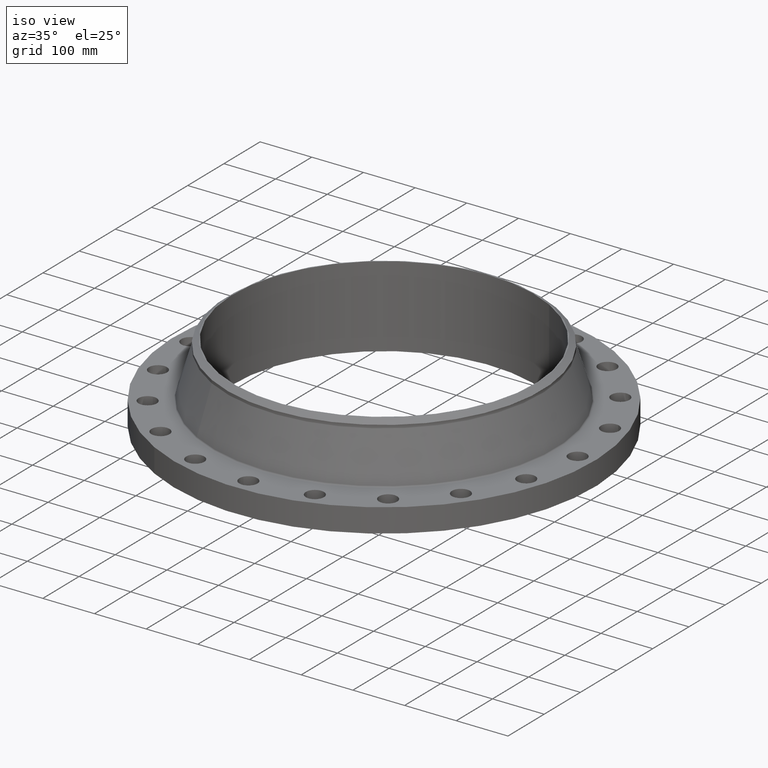
[diagram: clean part render]
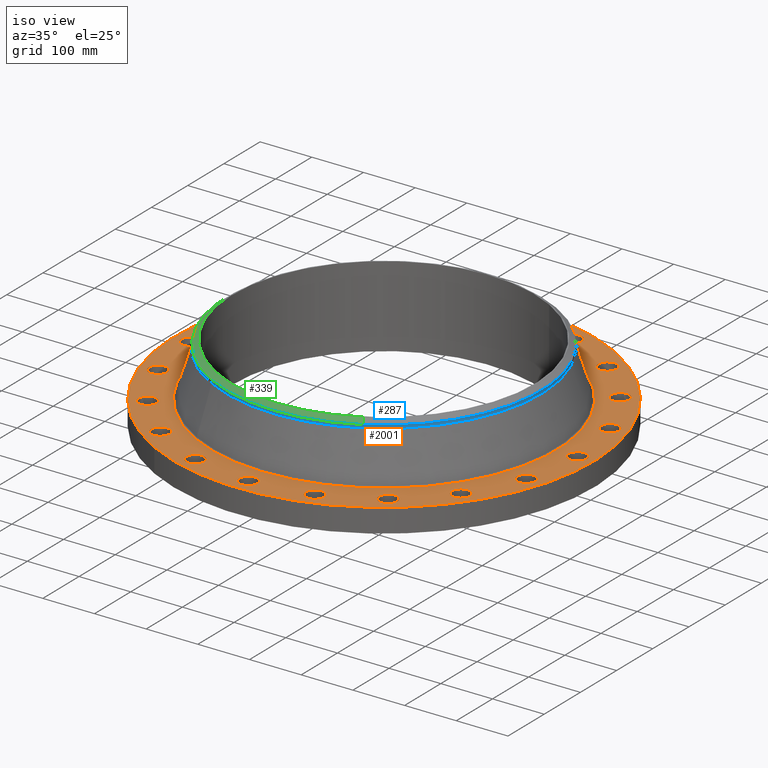
[diagram: same view with three faces highlighted in distinct colors, each labeled with its STEP entity id]
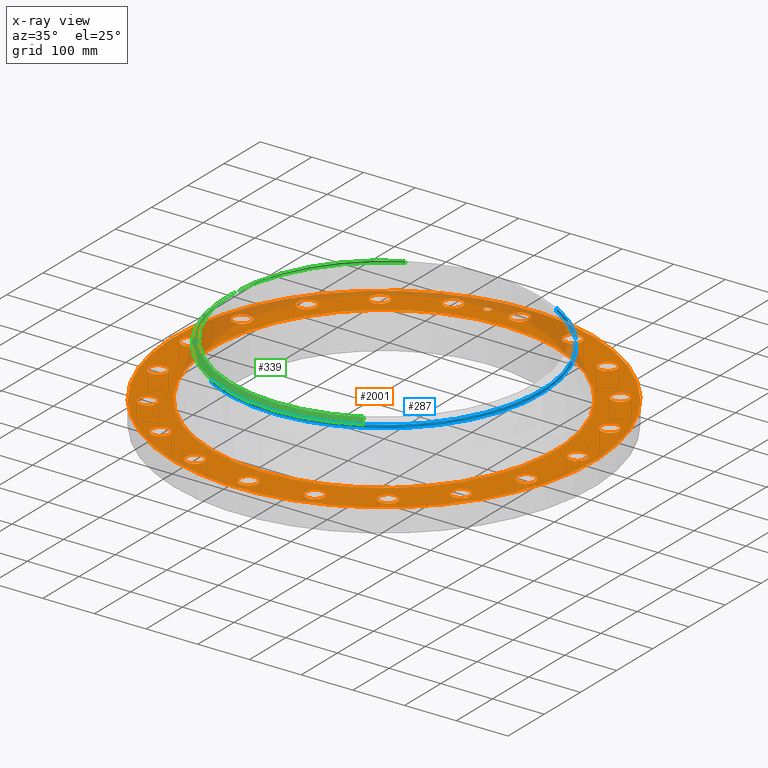
[diagram: x-ray of the same camera — body ghosted, the three highlighted faces saturated]
A machine part, iso view with three faces highlighted in distinct colors.
The next image is the same camera in x-ray (body ghosted, the three faces saturated) — at least one of them is partly hidden behind the body in this view.
Their STEP definitions:

[orange] entity #2001 — the highlighted planar face has unit normal (0, 0, -1).
#65=AXIS2_PLACEMENT_3D('Circle Axis2P3D',#63,#64,$) ;
#82=AXIS2_PLACEMENT_3D('Circle Axis2P3D',#80,#81,$) ;
#115=AXIS2_PLACEMENT_3D('Circle Axis2P3D',#113,#114,$) ;
#139=AXIS2_PLACEMENT_3D('Circle Axis2P3D',#137,#138,$) ;
#156=AXIS2_PLACEMENT_3D('Circle Axis2P3D',#154,#155,$) ;
#191=AXIS2_PLACEMENT_3D('Circle Axis2P3D',#189,#190,$) ;
#862=AXIS2_PLACEMENT_3D('Circle Axis2P3D',#860,#861,$) ;
#874=AXIS2_PLACEMENT_3D('Circle Axis2P3D',#872,#873,$) ;
#905=AXIS2_PLACEMENT_3D('Circle Axis2P3D',#903,#904,$) ;
#917=AXIS2_PLACEMENT_3D('Circle Axis2P3D',#915,#916,$) ;
#948=AXIS2_PLACEMENT_3D('Circle Axis2P3D',#946,#947,$) ;
#960=AXIS2_PLACEMENT_3D('Circle Axis2P3D',#958,#959,$) ;
#991=AXIS2_PLACEMENT_3D('Circle Axis2P3D',#989,#990,$) ;
#1003=AXIS2_PLACEMENT_3D('Circle Axis2P3D',#1001,#1002,$) ;
#1034=AXIS2_PLACEMENT_3D('Circle Axis2P3D',#1032,#1033,$) ;
#1046=AXIS2_PLACEMENT_3D('Circle Axis2P3D',#1044,#1045,$) ;
#1077=AXIS2_PLACEMENT_3D('Circle Axis2P3D',#1075,#1076,$) ;
#1089=AXIS2_PLACEMENT_3D('Circle Axis2P3D',#1087,#1088,$) ;
#1120=AXIS2_PLACEMENT_3D('Circle Axis2P3D',#1118,#1119,$) ;
#1132=AXIS2_PLACEMENT_3D('Circle Axis2P3D',#1130,#1131,$) ;
#1163=AXIS2_PLACEMENT_3D('Circle Axis2P3D',#1161,#1162,$) ;
#1175=AXIS2_PLACEMENT_3D('Circle Axis2P3D',#1173,#1174,$) ;
#1206=AXIS2_PLACEMENT_3D('Circle Axis2P3D',#1204,#1205,$) ;
#1218=AXIS2_PLACEMENT_3D('Circle Axis2P3D',#1216,#1217,$) ;
#1249=AXIS2_PLACEMENT_3D('Circle Axis2P3D',#1247,#1248,$) ;
#1261=AXIS2_PLACEMENT_3D('Circle Axis2P3D',#1259,#1260,$) ;
#1292=AXIS2_PLACEMENT_3D('Circle Axis2P3D',#1290,#1291,$) ;
#1304=AXIS2_PLACEMENT_3D('Circle Axis2P3D',#1302,#1303,$) ;
#1335=AXIS2_PLACEMENT_3D('Circle Axis2P3D',#1333,#1334,$) ;
#1347=AXIS2_PLACEMENT_3D('Circle Axis2P3D',#1345,#1346,$) ;
#1378=AXIS2_PLACEMENT_3D('Circle Axis2P3D',#1376,#1377,$) ;
#1390=AXIS2_PLACEMENT_3D('Circle Axis2P3D',#1388,#1389,$) ;
#1421=AXIS2_PLACEMENT_3D('Circle Axis2P3D',#1419,#1420,$) ;
#1433=AXIS2_PLACEMENT_3D('Circle Axis2P3D',#1431,#1432,$) ;
#1464=AXIS2_PLACEMENT_3D('Circle Axis2P3D',#1462,#1463,$) ;
#1476=AXIS2_PLACEMENT_3D('Circle Axis2P3D',#1474,#1475,$) ;
#1507=AXIS2_PLACEMENT_3D('Circle Axis2P3D',#1505,#1506,$) ;
#1519=AXIS2_PLACEMENT_3D('Circle Axis2P3D',#1517,#1518,$) ;
#1550=AXIS2_PLACEMENT_3D('Circle Axis2P3D',#1548,#1549,$) ;
#1562=AXIS2_PLACEMENT_3D('Circle Axis2P3D',#1560,#1561,$) ;
#1593=AXIS2_PLACEMENT_3D('Circle Axis2P3D',#1591,#1592,$) ;
#1605=AXIS2_PLACEMENT_3D('Circle Axis2P3D',#1603,#1604,$) ;
#1636=AXIS2_PLACEMENT_3D('Circle Axis2P3D',#1634,#1635,$) ;
#1648=AXIS2_PLACEMENT_3D('Circle Axis2P3D',#1646,#1647,$) ;
#1893=AXIS2_PLACEMENT_3D('Plane Axis2P3D',#1890,#1891,#1892) ;
#1985=AXIS2_PLACEMENT_3D('Circle Axis2P3D',#1983,#1984,$) ;
#1994=AXIS2_PLACEMENT_3D('Circle Axis2P3D',#1992,#1993,$) ;
#46=CARTESIAN_POINT('Vertex',(-0.605531967707,15.0808036217,1.81000000001)) ;
#60=CARTESIAN_POINT('Vertex',(0.605531967707,14.4191963784,1.81000000001)) ;
#63=CARTESIAN_POINT('Axis2P3D Location',(0.,14.7500000001,1.81000000001)) ;
#80=CARTESIAN_POINT('Axis2P3D Location',(0.,14.7500000001,1.81000000001)) ;
#110=CARTESIAN_POINT('Vertex',(-7.6708086177,-14.0413209903,1.81000000001)) ;
#113=CARTESIAN_POINT('Axis2P3D Location',(0.,0.,1.81000000001)) ;
#117=CARTESIAN_POINT('Vertex',(7.6708086177,14.0413209903,1.81000000001)) ;
#137=CARTESIAN_POINT('Axis2P3D Location',(0.,0.,1.81000000001)) ;
#154=CARTESIAN_POINT('Axis2P3D Location',(0.,0.,1.81000000001)) ;
#158=CARTESIAN_POINT('Vertex',(6.30423081195,11.5398170961,1.81000000001)) ;
#160=CARTESIAN_POINT('Vertex',(-6.30423081195,-11.5398170961,1.81000000001)) ;
#189=CARTESIAN_POINT('Axis2P3D Location',(0.,0.,1.81000000001)) ;
#850=CARTESIAN_POINT('Vertex',(-4.08432948422,-14.529816224,1.81000000001)) ;
#857=CARTESIAN_POINT('Vertex',(-5.03167184987,-13.5263510068,1.81000000001)) ;
#860=CARTESIAN_POINT('Axis2P3D Location',(-4.55800066705,-14.0280836154,1.81000000001)) ;
#872=CARTESIAN_POINT('Axis2P3D Location',(-4.55800066705,-14.0280836154,1.81000000001)) ;
#893=CARTESIAN_POINT('Vertex',(8.37438830904,12.5565491792,1.81000000001)) ;
#900=CARTESIAN_POINT('Vertex',(8.96527663366,11.309452155,1.81000000001)) ;
#903=CARTESIAN_POINT('Axis2P3D Location',(8.66983247135,11.9330006671,1.81000000001)) ;
#915=CARTESIAN_POINT('Axis2P3D Location',(8.66983247135,11.9330006671,1.81000000001)) ;
#936=CARTESIAN_POINT('Vertex',(-8.37438830904,-12.5565491792,1.81000000001)) ;
#943=CARTESIAN_POINT('Vertex',(-8.96527663366,-11.309452155,1.81000000001)) ;
#946=CARTESIAN_POINT('Axis2P3D Location',(-8.66983247135,-11.9330006671,1.81000000001)) ;
#958=CARTESIAN_POINT('Axis2P3D Location',(-8.66983247135,-11.9330006671,1.81000000001)) ;
#979=CARTESIAN_POINT('Vertex',(11.8447036584,9.35415961406,1.81000000001)) ;
#986=CARTESIAN_POINT('Vertex',(12.0212976758,7.98550532863,1.81000000001)) ;
#989=CARTESIAN_POINT('Axis2P3D Location',(11.9330006671,8.66983247135,1.81000000001)) ;
#1001=CARTESIAN_POINT('Axis2P3D Location',(11.9330006671,8.66983247135,1.81000000001)) ;
#1022=CARTESIAN_POINT('Vertex',(-11.8447036584,-9.35415961406,1.81000000001)) ;
#1029=CARTESIAN_POINT('Vertex',(-12.0212976758,-7.98550532863,1.81000000001)) ;
#1032=CARTESIAN_POINT('Axis2P3D Location',(-11.9330006671,-8.66983247135,1.81000000001)) ;
#1044=CARTESIAN_POINT('Axis2P3D Location',(-11.9330006671,-8.66983247135,1.81000000001)) ;
#1065=CARTESIAN_POINT('Vertex',(14.1555768867,5.23611973165,1.81000000001)) ;
#1072=CARTESIAN_POINT('Vertex',(13.9005903441,3.87988160245,1.81000000001)) ;
#1075=CARTESIAN_POINT('Axis2P3D Location',(14.0280836154,4.55800066705,1.81000000001)) ;
#1087=CARTESIAN_POINT('Axis2P3D Location',(14.0280836154,4.55800066705,1.81000000001)) ;
#1108=CARTESIAN_POINT('Vertex',(-14.1555768867,-5.23611973165,1.81000000001)) ;
#1115=CARTESIAN_POINT('Vertex',(-13.9005903441,-3.87988160245,1.81000000001)) ;
#1118=CARTESIAN_POINT('Axis2P3D Location',(-14.0280836154,-4.55800066705,1.81000000001)) ;
#1130=CARTESIAN_POINT('Axis2P3D Location',(-14.0280836154,-4.55800066705,1.81000000001)) ;
#1151=CARTESIAN_POINT('Vertex',(15.0808036217,0.605531967707,1.81000000001)) ;
#1158=CARTESIAN_POINT('Vertex',(14.4191963784,-0.605531967707,1.81000000001)) ;
#1161=CARTESIAN_POINT('Axis2P3D Location',(14.7500000001,4.17833493703E-015,1.81000000001)) ;
#1173=CARTESIAN_POINT('Axis2P3D Location',(14.7500000001,4.17833493703E-015,1.81000000001)) ;
#1194=CARTESIAN_POINT('Vertex',(-15.0808036217,-0.605531967707,1.81000000001)) ;
#1201=CARTESIAN_POINT('Vertex',(-14.4191963784,0.605531967707,1.81000000001)) ;
#1204=CARTESIAN_POINT('Axis2P3D Location',(-14.7500000001,-1.58101627338E-014,1.81000000001)) ;
#1216=CARTESIAN_POINT('Axis2P3D Location',(-14.7500000001,-1.58101627338E-014,1.81000000001)) ;
#1237=CARTESIAN_POINT('Vertex',(14.529816224,-4.08432948422,1.81000000001)) ;
#1244=CARTESIAN_POINT('Vertex',(13.5263510068,-5.03167184987,1.81000000001)) ;
#1247=CARTESIAN_POINT('Axis2P3D Location',(14.0280836154,-4.55800066705,1.81000000001)) ;
#1259=CARTESIAN_POINT('Axis2P3D Location',(14.0280836154,-4.55800066705,1.81000000001)) ;
#1280=CARTESIAN_POINT('Vertex',(-14.529816224,4.08432948422,1.81000000001)) ;
#1287=CARTESIAN_POINT('Vertex',(-13.5263510068,5.03167184987,1.81000000001)) ;
#1290=CARTESIAN_POINT('Axis2P3D Location',(-14.0280836154,4.55800066705,1.81000000001)) ;
#1302=CARTESIAN_POINT('Axis2P3D Location',(-14.0280836154,4.55800066705,1.81000000001)) ;
#1323=CARTESIAN_POINT('Vertex',(12.5565491792,-8.37438830904,1.81000000001)) ;
#1330=CARTESIAN_POINT('Vertex',(11.309452155,-8.96527663366,1.81000000001)) ;
#1333=CARTESIAN_POINT('Axis2P3D Location',(11.9330006671,-8.66983247135,1.81000000001)) ;
#1345=CARTESIAN_POINT('Axis2P3D Location',(11.9330006671,-8.66983247135,1.81000000001)) ;
#1366=CARTESIAN_POINT('Vertex',(-12.5565491792,8.37438830904,1.81000000001)) ;
#1373=CARTESIAN_POINT('Vertex',(-11.309452155,8.96527663366,1.81000000001)) ;
#1376=CARTESIAN_POINT('Axis2P3D Location',(-11.9330006671,8.66983247135,1.81000000001)) ;
#1388=CARTESIAN_POINT('Axis2P3D Location',(-11.9330006671,8.66983247135,1.81000000001)) ;
#1409=CARTESIAN_POINT('Vertex',(9.35415961406,-11.8447036584,1.81000000001)) ;
#1416=CARTESIAN_POINT('Vertex',(7.98550532863,-12.0212976758,1.81000000001)) ;
#1419=CARTESIAN_POINT('Axis2P3D Location',(8.66983247135,-11.9330006671,1.81000000001)) ;
#1431=CARTESIAN_POINT('Axis2P3D Location',(8.66983247135,-11.9330006671,1.81000000001)) ;
#1452=CARTESIAN_POINT('Vertex',(-9.35415961406,11.8447036584,1.81000000001)) ;
#1459=CARTESIAN_POINT('Vertex',(-7.98550532863,12.0212976758,1.81000000001)) ;
#1462=CARTESIAN_POINT('Axis2P3D Location',(-8.66983247135,11.9330006671,1.81000000001)) ;
#1474=CARTESIAN_POINT('Axis2P3D Location',(-8.66983247135,11.9330006671,1.81000000001)) ;
#1495=CARTESIAN_POINT('Vertex',(5.23611973165,-14.1555768867,1.81000000001)) ;
#1502=CARTESIAN_POINT('Vertex',(3.87988160245,-13.9005903441,1.81000000001)) ;
#1505=CARTESIAN_POINT('Axis2P3D Location',(4.55800066705,-14.0280836154,1.81000000001)) ;
#1517=CARTESIAN_POINT('Axis2P3D Location',(4.55800066705,-14.0280836154,1.81000000001)) ;
#1538=CARTESIAN_POINT('Vertex',(-5.23611973165,14.1555768867,1.81000000001)) ;
#1545=CARTESIAN_POINT('Vertex',(-3.87988160245,13.9005903441,1.81000000001)) ;
#1548=CARTESIAN_POINT('Axis2P3D Location',(-4.55800066705,14.0280836154,1.81000000001)) ;
#1560=CARTESIAN_POINT('Axis2P3D Location',(-4.55800066705,14.0280836154,1.81000000001)) ;
#1581=CARTESIAN_POINT('Vertex',(0.605531967707,-15.0808036217,1.81000000001)) ;
#1588=CARTESIAN_POINT('Vertex',(-0.605531967707,-14.4191963784,1.81000000001)) ;
#1591=CARTESIAN_POINT('Axis2P3D Location',(8.35666987406E-015,-14.7500000001,1.81000000001)) ;
#1603=CARTESIAN_POINT('Axis2P3D Location',(8.35666987406E-015,-14.7500000001,1.81000000001)) ;
#1624=CARTESIAN_POINT('Vertex',(4.08432948422,14.529816224,1.81000000001)) ;
#1631=CARTESIAN_POINT('Vertex',(5.03167184987,13.5263510068,1.81000000001)) ;
#1634=CARTESIAN_POINT('Axis2P3D Location',(4.55800066705,14.0280836154,1.81000000001)) ;
#1646=CARTESIAN_POINT('Axis2P3D Location',(4.55800066705,14.0280836154,1.81000000001)) ;
#1890=CARTESIAN_POINT('Axis2P3D Location',(0.,16.0000000001,1.81000000001)) ;
#1983=CARTESIAN_POINT('Axis2P3D Location',(-2.30740835935,14.5684030238,1.81000000001)) ;
#1987=CARTESIAN_POINT('Vertex',(-2.06295549505,14.6071205539,1.81000000001)) ;
#1989=CARTESIAN_POINT('Vertex',(-2.55186122365,14.5296854937,1.81000000001)) ;
#1992=CARTESIAN_POINT('Axis2P3D Location',(-2.30740835935,14.5684030238,1.81000000001)) ;
#64=DIRECTION('Axis2P3D Direction',(0.,-0.,-0.0393700787402)) ;
#81=DIRECTION('Axis2P3D Direction',(0.,-0.,-0.0393700787402)) ;
#114=DIRECTION('Axis2P3D Direction',(0.,0.,-0.0393700787402)) ;
#138=DIRECTION('Axis2P3D Direction',(0.,0.,-0.0393700787402)) ;
#155=DIRECTION('Axis2P3D Direction',(0.,0.,-0.0393700787402)) ;
#190=DIRECTION('Axis2P3D Direction',(0.,0.,-0.0393700787402)) ;
#861=DIRECTION('Axis2P3D Direction',(0.,0.,-0.0393700787402)) ;
#873=DIRECTION('Axis2P3D Direction',(0.,0.,-0.0393700787402)) ;
#904=DIRECTION('Axis2P3D Direction',(0.,-0.,-0.0393700787402)) ;
#916=DIRECTION('Axis2P3D Direction',(0.,-0.,-0.0393700787402)) ;
#947=DIRECTION('Axis2P3D Direction',(0.,0.,-0.0393700787402)) ;
#959=DIRECTION('Axis2P3D Direction',(0.,0.,-0.0393700787402)) ;
#990=DIRECTION('Axis2P3D Direction',(0.,-0.,-0.0393700787402)) ;
#1002=DIRECTION('Axis2P3D Direction',(0.,-0.,-0.0393700787402)) ;
#1033=DIRECTION('Axis2P3D Direction',(0.,0.,-0.0393700787402)) ;
#1045=DIRECTION('Axis2P3D Direction',(0.,0.,-0.0393700787402)) ;
#1076=DIRECTION('Axis2P3D Direction',(0.,-0.,-0.0393700787402)) ;
#1088=DIRECTION('Axis2P3D Direction',(0.,-0.,-0.0393700787402)) ;
#1119=DIRECTION('Axis2P3D Direction',(0.,0.,-0.0393700787402)) ;
#1131=DIRECTION('Axis2P3D Direction',(0.,0.,-0.0393700787402)) ;
#1162=DIRECTION('Axis2P3D Direction',(0.,-0.,-0.0393700787402)) ;
#1174=DIRECTION('Axis2P3D Direction',(0.,-0.,-0.0393700787402)) ;
#1205=DIRECTION('Axis2P3D Direction',(0.,0.,-0.0393700787402)) ;
#1217=DIRECTION('Axis2P3D Direction',(0.,0.,-0.0393700787402)) ;
#1248=DIRECTION('Axis2P3D Direction',(-0.,0.,-0.0393700787402)) ;
#1260=DIRECTION('Axis2P3D Direction',(-0.,0.,-0.0393700787402)) ;
#1291=DIRECTION('Axis2P3D Direction',(0.,0.,-0.0393700787402)) ;
#1303=DIRECTION('Axis2P3D Direction',(0.,0.,-0.0393700787402)) ;
#1334=DIRECTION('Axis2P3D Direction',(-0.,0.,-0.0393700787402)) ;
#1346=DIRECTION('Axis2P3D Direction',(-0.,0.,-0.0393700787402)) ;
#1377=DIRECTION('Axis2P3D Direction',(0.,0.,-0.0393700787402)) ;
#1389=DIRECTION('Axis2P3D Direction',(0.,0.,-0.0393700787402)) ;
#1420=DIRECTION('Axis2P3D Direction',(-0.,0.,-0.0393700787402)) ;
#1432=DIRECTION('Axis2P3D Direction',(-0.,0.,-0.0393700787402)) ;
#1463=DIRECTION('Axis2P3D Direction',(0.,0.,-0.0393700787402)) ;
#1475=DIRECTION('Axis2P3D Direction',(0.,0.,-0.0393700787402)) ;
#1506=DIRECTION('Axis2P3D Direction',(-0.,0.,-0.0393700787402)) ;
#1518=DIRECTION('Axis2P3D Direction',(-0.,0.,-0.0393700787402)) ;
#1549=DIRECTION('Axis2P3D Direction',(0.,0.,-0.0393700787402)) ;
#1561=DIRECTION('Axis2P3D Direction',(0.,0.,-0.0393700787402)) ;
#1592=DIRECTION('Axis2P3D Direction',(-0.,0.,-0.0393700787402)) ;
#1604=DIRECTION('Axis2P3D Direction',(-0.,0.,-0.0393700787402)) ;
#1635=DIRECTION('Axis2P3D Direction',(0.,-0.,-0.0393700787402)) ;
#1647=DIRECTION('Axis2P3D Direction',(0.,-0.,-0.0393700787402)) ;
#1891=DIRECTION('Axis2P3D Direction',(0.,0.,-0.0393700787402)) ;
#1892=DIRECTION('Axis2P3D XDirection',(0.0393700787402,0.,0.)) ;
#1984=DIRECTION('Axis2P3D Direction',(0.,0.,-0.0393700787402)) ;
#1993=DIRECTION('Axis2P3D Direction',(0.,0.,-0.0393700787402)) ;
#1896=ORIENTED_EDGE('',*,*,#141,.F.) ;
#1897=ORIENTED_EDGE('',*,*,#119,.F.) ;
#1900=ORIENTED_EDGE('',*,*,#67,.T.) ;
#1901=ORIENTED_EDGE('',*,*,#84,.T.) ;
#1904=ORIENTED_EDGE('',*,*,#193,.T.) ;
#1905=ORIENTED_EDGE('',*,*,#162,.T.) ;
#1908=ORIENTED_EDGE('',*,*,#1650,.T.) ;
#1909=ORIENTED_EDGE('',*,*,#1638,.T.) ;
#1912=ORIENTED_EDGE('',*,*,#919,.T.) ;
#1913=ORIENTED_EDGE('',*,*,#907,.T.) ;
#1916=ORIENTED_EDGE('',*,*,#1005,.T.) ;
#1917=ORIENTED_EDGE('',*,*,#993,.T.) ;
#1920=ORIENTED_EDGE('',*,*,#1091,.T.) ;
#1921=ORIENTED_EDGE('',*,*,#1079,.T.) ;
#1924=ORIENTED_EDGE('',*,*,#1177,.T.) ;
#1925=ORIENTED_EDGE('',*,*,#1165,.T.) ;
#1928=ORIENTED_EDGE('',*,*,#1263,.T.) ;
#1929=ORIENTED_EDGE('',*,*,#1251,.T.) ;
#1932=ORIENTED_EDGE('',*,*,#1349,.T.) ;
#1933=ORIENTED_EDGE('',*,*,#1337,.T.) ;
#1936=ORIENTED_EDGE('',*,*,#1435,.T.) ;
#1937=ORIENTED_EDGE('',*,*,#1423,.T.) ;
#1940=ORIENTED_EDGE('',*,*,#1521,.T.) ;
#1941=ORIENTED_EDGE('',*,*,#1509,.T.) ;
#1944=ORIENTED_EDGE('',*,*,#1607,.T.) ;
#1945=ORIENTED_EDGE('',*,*,#1595,.T.) ;
#1948=ORIENTED_EDGE('',*,*,#876,.T.) ;
#1949=ORIENTED_EDGE('',*,*,#864,.T.) ;
#1952=ORIENTED_EDGE('',*,*,#962,.T.) ;
#1953=ORIENTED_EDGE('',*,*,#950,.T.) ;
#1956=ORIENTED_EDGE('',*,*,#1048,.T.) ;
#1957=ORIENTED_EDGE('',*,*,#1036,.T.) ;
#1960=ORIENTED_EDGE('',*,*,#1134,.T.) ;
#1961=ORIENTED_EDGE('',*,*,#1122,.T.) ;
#1964=ORIENTED_EDGE('',*,*,#1220,.T.) ;
#1965=ORIENTED_EDGE('',*,*,#1208,.T.) ;
#1968=ORIENTED_EDGE('',*,*,#1306,.T.) ;
#1969=ORIENTED_EDGE('',*,*,#1294,.T.) ;
#1972=ORIENTED_EDGE('',*,*,#1392,.T.) ;
#1973=ORIENTED_EDGE('',*,*,#1380,.T.) ;
#1976=ORIENTED_EDGE('',*,*,#1478,.T.) ;
#1977=ORIENTED_EDGE('',*,*,#1466,.T.) ;
#1980=ORIENTED_EDGE('',*,*,#1564,.T.) ;
#1981=ORIENTED_EDGE('',*,*,#1552,.T.) ;
#1998=ORIENTED_EDGE('',*,*,#1991,.F.) ;
#1999=ORIENTED_EDGE('',*,*,#1996,.F.) ;
#1902=FACE_BOUND('',#1899,.T.) ;
#1906=FACE_BOUND('',#1903,.T.) ;
#1910=FACE_BOUND('',#1907,.T.) ;
#1914=FACE_BOUND('',#1911,.T.) ;
#1918=FACE_BOUND('',#1915,.T.) ;
#1922=FACE_BOUND('',#1919,.T.) ;
#1926=FACE_BOUND('',#1923,.T.) ;
#1930=FACE_BOUND('',#1927,.T.) ;
#1934=FACE_BOUND('',#1931,.T.) ;
#1938=FACE_BOUND('',#1935,.T.) ;
#1942=FACE_BOUND('',#1939,.T.) ;
#1946=FACE_BOUND('',#1943,.T.) ;
#1950=FACE_BOUND('',#1947,.T.) ;
#1954=FACE_BOUND('',#1951,.T.) ;
#1958=FACE_BOUND('',#1955,.T.) ;
#1962=FACE_BOUND('',#1959,.T.) ;
#1966=FACE_BOUND('',#1963,.T.) ;
#1970=FACE_BOUND('',#1967,.T.) ;
#1974=FACE_BOUND('',#1971,.T.) ;
#1978=FACE_BOUND('',#1975,.T.) ;
#1982=FACE_BOUND('',#1979,.T.) ;
#2000=FACE_BOUND('',#1997,.T.) ;
#2001=ADVANCED_FACE('PartBody',(#1898,#1902,#1906,#1910,#1914,#1918,#1922,#1926,#1930,#1934,#1938,#1942,#1946,#1950,#1954,#1958,#1962,#1966,#1970,#1974,#1978,#1982,#2000),#1894,.F.) ;
#66=CIRCLE('generated circle',#65,0.690000000003) ;
#83=CIRCLE('generated circle',#82,0.690000000003) ;
#116=CIRCLE('generated circle',#115,16.0000000001) ;
#140=CIRCLE('generated circle',#139,16.0000000001) ;
#157=CIRCLE('generated circle',#156,13.1495515035) ;
#192=CIRCLE('generated circle',#191,13.1495515035) ;
#863=CIRCLE('generated circle',#862,0.690000000003) ;
#875=CIRCLE('generated circle',#874,0.690000000003) ;
#906=CIRCLE('generated circle',#905,0.690000000003) ;
#918=CIRCLE('generated circle',#917,0.690000000003) ;
#949=CIRCLE('generated circle',#948,0.690000000003) ;
#961=CIRCLE('generated circle',#960,0.690000000003) ;
#992=CIRCLE('generated circle',#991,0.690000000003) ;
#1004=CIRCLE('generated circle',#1003,0.690000000003) ;
#1035=CIRCLE('generated circle',#1034,0.690000000003) ;
#1047=CIRCLE('generated circle',#1046,0.690000000003) ;
#1078=CIRCLE('generated circle',#1077,0.690000000003) ;
#1090=CIRCLE('generated circle',#1089,0.690000000003) ;
#1121=CIRCLE('generated circle',#1120,0.690000000003) ;
#1133=CIRCLE('generated circle',#1132,0.690000000003) ;
#1164=CIRCLE('generated circle',#1163,0.690000000003) ;
#1176=CIRCLE('generated circle',#1175,0.690000000003) ;
#1207=CIRCLE('generated circle',#1206,0.690000000003) ;
#1219=CIRCLE('generated circle',#1218,0.690000000003) ;
#1250=CIRCLE('generated circle',#1249,0.690000000003) ;
#1262=CIRCLE('generated circle',#1261,0.690000000003) ;
#1293=CIRCLE('generated circle',#1292,0.690000000003) ;
#1305=CIRCLE('generated circle',#1304,0.690000000003) ;
#1336=CIRCLE('generated circle',#1335,0.690000000003) ;
#1348=CIRCLE('generated circle',#1347,0.690000000003) ;
#1379=CIRCLE('generated circle',#1378,0.690000000003) ;
#1391=CIRCLE('generated circle',#1390,0.690000000003) ;
#1422=CIRCLE('generated circle',#1421,0.690000000003) ;
#1434=CIRCLE('generated circle',#1433,0.690000000003) ;
#1465=CIRCLE('generated circle',#1464,0.690000000003) ;
#1477=CIRCLE('generated circle',#1476,0.690000000003) ;
#1508=CIRCLE('generated circle',#1507,0.690000000003) ;
#1520=CIRCLE('generated circle',#1519,0.690000000003) ;
#1551=CIRCLE('generated circle',#1550,0.690000000003) ;
#1563=CIRCLE('generated circle',#1562,0.690000000003) ;
#1594=CIRCLE('generated circle',#1593,0.690000000003) ;
#1606=CIRCLE('generated circle',#1605,0.690000000003) ;
#1637=CIRCLE('generated circle',#1636,0.690000000003) ;
#1649=CIRCLE('generated circle',#1648,0.690000000003) ;
#1986=CIRCLE('generated circle',#1985,0.247500000001) ;
#1995=CIRCLE('generated circle',#1994,0.247500000001) ;
#67=EDGE_CURVE('',#47,#61,#66,.T.) ;
#84=EDGE_CURVE('',#61,#47,#83,.T.) ;
#119=EDGE_CURVE('',#111,#118,#116,.T.) ;
#141=EDGE_CURVE('',#118,#111,#140,.T.) ;
#162=EDGE_CURVE('',#159,#161,#157,.T.) ;
#193=EDGE_CURVE('',#161,#159,#192,.T.) ;
#864=EDGE_CURVE('',#851,#858,#863,.T.) ;
#876=EDGE_CURVE('',#858,#851,#875,.T.) ;
#907=EDGE_CURVE('',#894,#901,#906,.T.) ;
#919=EDGE_CURVE('',#901,#894,#918,.T.) ;
#950=EDGE_CURVE('',#937,#944,#949,.T.) ;
#962=EDGE_CURVE('',#944,#937,#961,.T.) ;
#993=EDGE_CURVE('',#980,#987,#992,.T.) ;
#1005=EDGE_CURVE('',#987,#980,#1004,.T.) ;
#1036=EDGE_CURVE('',#1023,#1030,#1035,.T.) ;
#1048=EDGE_CURVE('',#1030,#1023,#1047,.T.) ;
#1079=EDGE_CURVE('',#1066,#1073,#1078,.T.) ;
#1091=EDGE_CURVE('',#1073,#1066,#1090,.T.) ;
#1122=EDGE_CURVE('',#1109,#1116,#1121,.T.) ;
#1134=EDGE_CURVE('',#1116,#1109,#1133,.T.) ;
#1165=EDGE_CURVE('',#1152,#1159,#1164,.T.) ;
#1177=EDGE_CURVE('',#1159,#1152,#1176,.T.) ;
#1208=EDGE_CURVE('',#1195,#1202,#1207,.T.) ;
#1220=EDGE_CURVE('',#1202,#1195,#1219,.T.) ;
#1251=EDGE_CURVE('',#1238,#1245,#1250,.T.) ;
#1263=EDGE_CURVE('',#1245,#1238,#1262,.T.) ;
#1294=EDGE_CURVE('',#1281,#1288,#1293,.T.) ;
#1306=EDGE_CURVE('',#1288,#1281,#1305,.T.) ;
#1337=EDGE_CURVE('',#1324,#1331,#1336,.T.) ;
#1349=EDGE_CURVE('',#1331,#1324,#1348,.T.) ;
#1380=EDGE_CURVE('',#1367,#1374,#1379,.T.) ;
#1392=EDGE_CURVE('',#1374,#1367,#1391,.T.) ;
#1423=EDGE_CURVE('',#1410,#1417,#1422,.T.) ;
#1435=EDGE_CURVE('',#1417,#1410,#1434,.T.) ;
#1466=EDGE_CURVE('',#1453,#1460,#1465,.T.) ;
#1478=EDGE_CURVE('',#1460,#1453,#1477,.T.) ;
#1509=EDGE_CURVE('',#1496,#1503,#1508,.T.) ;
#1521=EDGE_CURVE('',#1503,#1496,#1520,.T.) ;
#1552=EDGE_CURVE('',#1539,#1546,#1551,.T.) ;
#1564=EDGE_CURVE('',#1546,#1539,#1563,.T.) ;
#1595=EDGE_CURVE('',#1582,#1589,#1594,.T.) ;
#1607=EDGE_CURVE('',#1589,#1582,#1606,.T.) ;
#1638=EDGE_CURVE('',#1625,#1632,#1637,.T.) ;
#1650=EDGE_CURVE('',#1632,#1625,#1649,.T.) ;
#1991=EDGE_CURVE('',#1988,#1990,#1986,.F.) ;
#1996=EDGE_CURVE('',#1990,#1988,#1995,.F.) ;
#1895=EDGE_LOOP('',(#1896,#1897)) ;
#1899=EDGE_LOOP('',(#1900,#1901)) ;
#1903=EDGE_LOOP('',(#1904,#1905)) ;
#1907=EDGE_LOOP('',(#1908,#1909)) ;
#1911=EDGE_LOOP('',(#1912,#1913)) ;
#1915=EDGE_LOOP('',(#1916,#1917)) ;
#1919=EDGE_LOOP('',(#1920,#1921)) ;
#1923=EDGE_LOOP('',(#1924,#1925)) ;
#1927=EDGE_LOOP('',(#1928,#1929)) ;
#1931=EDGE_LOOP('',(#1932,#1933)) ;
#1935=EDGE_LOOP('',(#1936,#1937)) ;
#1939=EDGE_LOOP('',(#1940,#1941)) ;
#1943=EDGE_LOOP('',(#1944,#1945)) ;
#1947=EDGE_LOOP('',(#1948,#1949)) ;
#1951=EDGE_LOOP('',(#1952,#1953)) ;
#1955=EDGE_LOOP('',(#1956,#1957)) ;
#1959=EDGE_LOOP('',(#1960,#1961)) ;
#1963=EDGE_LOOP('',(#1964,#1965)) ;
#1967=EDGE_LOOP('',(#1968,#1969)) ;
#1971=EDGE_LOOP('',(#1972,#1973)) ;
#1975=EDGE_LOOP('',(#1976,#1977)) ;
#1979=EDGE_LOOP('',(#1980,#1981)) ;
#1997=EDGE_LOOP('',(#1998,#1999)) ;
#1898=FACE_OUTER_BOUND('',#1895,.T.) ;
#1894=PLANE('',#1893) ;
#47=VERTEX_POINT('',#46) ;
#61=VERTEX_POINT('',#60) ;
#111=VERTEX_POINT('',#110) ;
#118=VERTEX_POINT('',#117) ;
#159=VERTEX_POINT('',#158) ;
#161=VERTEX_POINT('',#160) ;
#851=VERTEX_POINT('',#850) ;
#858=VERTEX_POINT('',#857) ;
#894=VERTEX_POINT('',#893) ;
#901=VERTEX_POINT('',#900) ;
#937=VERTEX_POINT('',#936) ;
#944=VERTEX_POINT('',#943) ;
#980=VERTEX_POINT('',#979) ;
#987=VERTEX_POINT('',#986) ;
#1023=VERTEX_POINT('',#1022) ;
#1030=VERTEX_POINT('',#1029) ;
#1066=VERTEX_POINT('',#1065) ;
#1073=VERTEX_POINT('',#1072) ;
#1109=VERTEX_POINT('',#1108) ;
#1116=VERTEX_POINT('',#1115) ;
#1152=VERTEX_POINT('',#1151) ;
#1159=VERTEX_POINT('',#1158) ;
#1195=VERTEX_POINT('',#1194) ;
#1202=VERTEX_POINT('',#1201) ;
#1238=VERTEX_POINT('',#1237) ;
#1245=VERTEX_POINT('',#1244) ;
#1281=VERTEX_POINT('',#1280) ;
#1288=VERTEX_POINT('',#1287) ;
#1324=VERTEX_POINT('',#1323) ;
#1331=VERTEX_POINT('',#1330) ;
#1367=VERTEX_POINT('',#1366) ;
#1374=VERTEX_POINT('',#1373) ;
#1410=VERTEX_POINT('',#1409) ;
#1417=VERTEX_POINT('',#1416) ;
#1453=VERTEX_POINT('',#1452) ;
#1460=VERTEX_POINT('',#1459) ;
#1496=VERTEX_POINT('',#1495) ;
#1503=VERTEX_POINT('',#1502) ;
#1539=VERTEX_POINT('',#1538) ;
#1546=VERTEX_POINT('',#1545) ;
#1582=VERTEX_POINT('',#1581) ;
#1589=VERTEX_POINT('',#1588) ;
#1625=VERTEX_POINT('',#1624) ;
#1632=VERTEX_POINT('',#1631) ;
#1988=VERTEX_POINT('',#1987) ;
#1990=VERTEX_POINT('',#1989) ;

[blue] entity #287 — the highlighted cylindrical surface (partial cylindrical patch) has radius 304.8 mm, axis along (0, 0, -1).
#220=AXIS2_PLACEMENT_3D('Circle Axis2P3D',#218,#219,$) ;
#252=AXIS2_PLACEMENT_3D('Cylinder Axis2P3D',#249,#250,#251) ;
#270=AXIS2_PLACEMENT_3D('Circle Axis2P3D',#268,#269,$) ;
#277=AXIS2_PLACEMENT_3D('Circle Axis2P3D',#275,#276,$) ;
#215=CARTESIAN_POINT('Vertex',(5.75310646327,10.5309907427,5.38053548146)) ;
#218=CARTESIAN_POINT('Axis2P3D Location',(0.,0.,5.38053548146)) ;
#222=CARTESIAN_POINT('Vertex',(-5.75310646327,-10.5309907427,5.38053548146)) ;
#249=CARTESIAN_POINT('Axis2P3D Location',(0.,0.,2.84500000001)) ;
#254=CARTESIAN_POINT('Line Origine',(-5.75310646327,-10.5309907427,5.49864571768)) ;
#258=CARTESIAN_POINT('Vertex',(-5.75310646327,-10.5309907427,5.61675595391)) ;
#261=CARTESIAN_POINT('Line Origine',(5.75310646327,10.5309907427,5.49864571768)) ;
#265=CARTESIAN_POINT('Vertex',(5.75310646327,10.5309907427,5.61675595391)) ;
#268=CARTESIAN_POINT('Axis2P3D Location',(0.,0.,5.61675595391)) ;
#272=CARTESIAN_POINT('Vertex',(5.75310646327,-10.5309907427,5.61675595391)) ;
#275=CARTESIAN_POINT('Axis2P3D Location',(0.,0.,5.61675595391)) ;
#219=DIRECTION('Axis2P3D Direction',(0.,0.,-0.0393700787402)) ;
#250=DIRECTION('Axis2P3D Direction',(0.,0.,-0.0393700787402)) ;
#251=DIRECTION('Axis2P3D XDirection',(-0.0188750212049,-0.0345504945626,0.)) ;
#255=DIRECTION('Vector Direction',(0.,0.,-0.0393700787402)) ;
#262=DIRECTION('Vector Direction',(0.,0.,-0.0393700787402)) ;
#269=DIRECTION('Axis2P3D Direction',(0.,0.,-0.0393700787402)) ;
#276=DIRECTION('Axis2P3D Direction',(0.,0.,-0.0393700787402)) ;
#256=VECTOR('Line Direction',#255,0.0393700787402) ;
#263=VECTOR('Line Direction',#262,0.0393700787402) ;
#281=ORIENTED_EDGE('',*,*,#260,.F.) ;
#282=ORIENTED_EDGE('',*,*,#224,.F.) ;
#283=ORIENTED_EDGE('',*,*,#267,.T.) ;
#284=ORIENTED_EDGE('',*,*,#274,.F.) ;
#285=ORIENTED_EDGE('',*,*,#279,.T.) ;
#287=ADVANCED_FACE('PartBody',(#286),#253,.T.) ;
#221=CIRCLE('generated circle',#220,12.) ;
#271=CIRCLE('generated circle',#270,12.) ;
#278=CIRCLE('generated circle',#277,12.) ;
#253=CYLINDRICAL_SURFACE('generated cylinder',#252,12.) ;
#224=EDGE_CURVE('',#216,#223,#221,.T.) ;
#260=EDGE_CURVE('',#223,#259,#257,.F.) ;
#267=EDGE_CURVE('',#216,#266,#264,.F.) ;
#274=EDGE_CURVE('',#273,#266,#271,.F.) ;
#279=EDGE_CURVE('',#273,#259,#278,.T.) ;
#280=EDGE_LOOP('',(#281,#282,#283,#284,#285)) ;
#286=FACE_OUTER_BOUND('',#280,.T.) ;
#257=LINE('Line',#254,#256) ;
#264=LINE('Line',#261,#263) ;
#216=VERTEX_POINT('',#215) ;
#223=VERTEX_POINT('',#222) ;
#259=VERTEX_POINT('',#258) ;
#266=VERTEX_POINT('',#265) ;
#273=VERTEX_POINT('',#272) ;

[green] entity #339 — the highlighted conical surface has half-angle 52.5 deg.
#277=AXIS2_PLACEMENT_3D('Circle Axis2P3D',#275,#276,$) ;
#290=AXIS2_PLACEMENT_3D('Circle Axis2P3D',#288,#289,$) ;
#311=AXIS2_PLACEMENT_3D('Cone Axis2P3D',#308,#309,#310) ;
#322=AXIS2_PLACEMENT_3D('Circle Axis2P3D',#320,#321,$) ;
#258=CARTESIAN_POINT('Vertex',(-5.75310646327,-10.5309907427,5.61675595391)) ;
#272=CARTESIAN_POINT('Vertex',(5.75310646327,-10.5309907427,5.61675595391)) ;
#275=CARTESIAN_POINT('Axis2P3D Location',(0.,0.,5.61675595391)) ;
#288=CARTESIAN_POINT('Axis2P3D Location',(0.,0.,5.61675595391)) ;
#292=CARTESIAN_POINT('Vertex',(-5.75310646327,10.5309907427,5.61675595391)) ;
#308=CARTESIAN_POINT('Axis2P3D Location',(0.,0.,5.94000000002)) ;
#313=CARTESIAN_POINT('Line Origine',(5.65212509983,-10.3461455968,5.77837797696)) ;
#317=CARTESIAN_POINT('Vertex',(5.55114373638,-10.1613004509,5.94000000002)) ;
#320=CARTESIAN_POINT('Axis2P3D Location',(0.,0.,5.94000000002)) ;
#324=CARTESIAN_POINT('Vertex',(-5.55114373638,10.1613004509,5.94000000002)) ;
#327=CARTESIAN_POINT('Line Origine',(-5.65212509983,10.3461455968,5.77837797696)) ;
#276=DIRECTION('Axis2P3D Direction',(0.,0.,-0.0393700787402)) ;
#289=DIRECTION('Axis2P3D Direction',(0.,0.,-0.0393700787402)) ;
#309=DIRECTION('Axis2P3D Direction',(-0.,-0.,-0.0393700787402)) ;
#310=DIRECTION('Axis2P3D XDirection',(-0.0188750212049,0.0345504945626,0.)) ;
#314=DIRECTION('Vector Direction',(0.014974561121,-0.02741075027,-0.023966985394)) ;
#321=DIRECTION('Axis2P3D Direction',(0.,0.,-0.0393700787402)) ;
#328=DIRECTION('Vector Direction',(-0.014974561121,0.02741075027,-0.023966985394)) ;
#315=VECTOR('Line Direction',#314,0.0393700787402) ;
#329=VECTOR('Line Direction',#328,0.0393700787402) ;
#333=ORIENTED_EDGE('',*,*,#319,.F.) ;
#334=ORIENTED_EDGE('',*,*,#326,.F.) ;
#335=ORIENTED_EDGE('',*,*,#331,.T.) ;
#336=ORIENTED_EDGE('',*,*,#294,.T.) ;
#337=ORIENTED_EDGE('',*,*,#279,.F.) ;
#339=ADVANCED_FACE('PartBody',(#338),#312,.T.) ;
#278=CIRCLE('generated circle',#277,12.) ;
#291=CIRCLE('generated circle',#290,12.) ;
#323=CIRCLE('generated circle',#322,11.5787401575) ;
#312=CONICAL_SURFACE('Cone',#311,11.5787401575,0.916297857297) ;
#279=EDGE_CURVE('',#273,#259,#278,.T.) ;
#294=EDGE_CURVE('',#293,#259,#291,.F.) ;
#319=EDGE_CURVE('',#318,#273,#316,.T.) ;
#326=EDGE_CURVE('',#325,#318,#323,.F.) ;
#331=EDGE_CURVE('',#325,#293,#330,.T.) ;
#332=EDGE_LOOP('',(#333,#334,#335,#336,#337)) ;
#338=FACE_OUTER_BOUND('',#332,.T.) ;
#316=LINE('Line',#313,#315) ;
#330=LINE('Line',#327,#329) ;
#259=VERTEX_POINT('',#258) ;
#273=VERTEX_POINT('',#272) ;
#293=VERTEX_POINT('',#292) ;
#318=VERTEX_POINT('',#317) ;
#325=VERTEX_POINT('',#324) ;